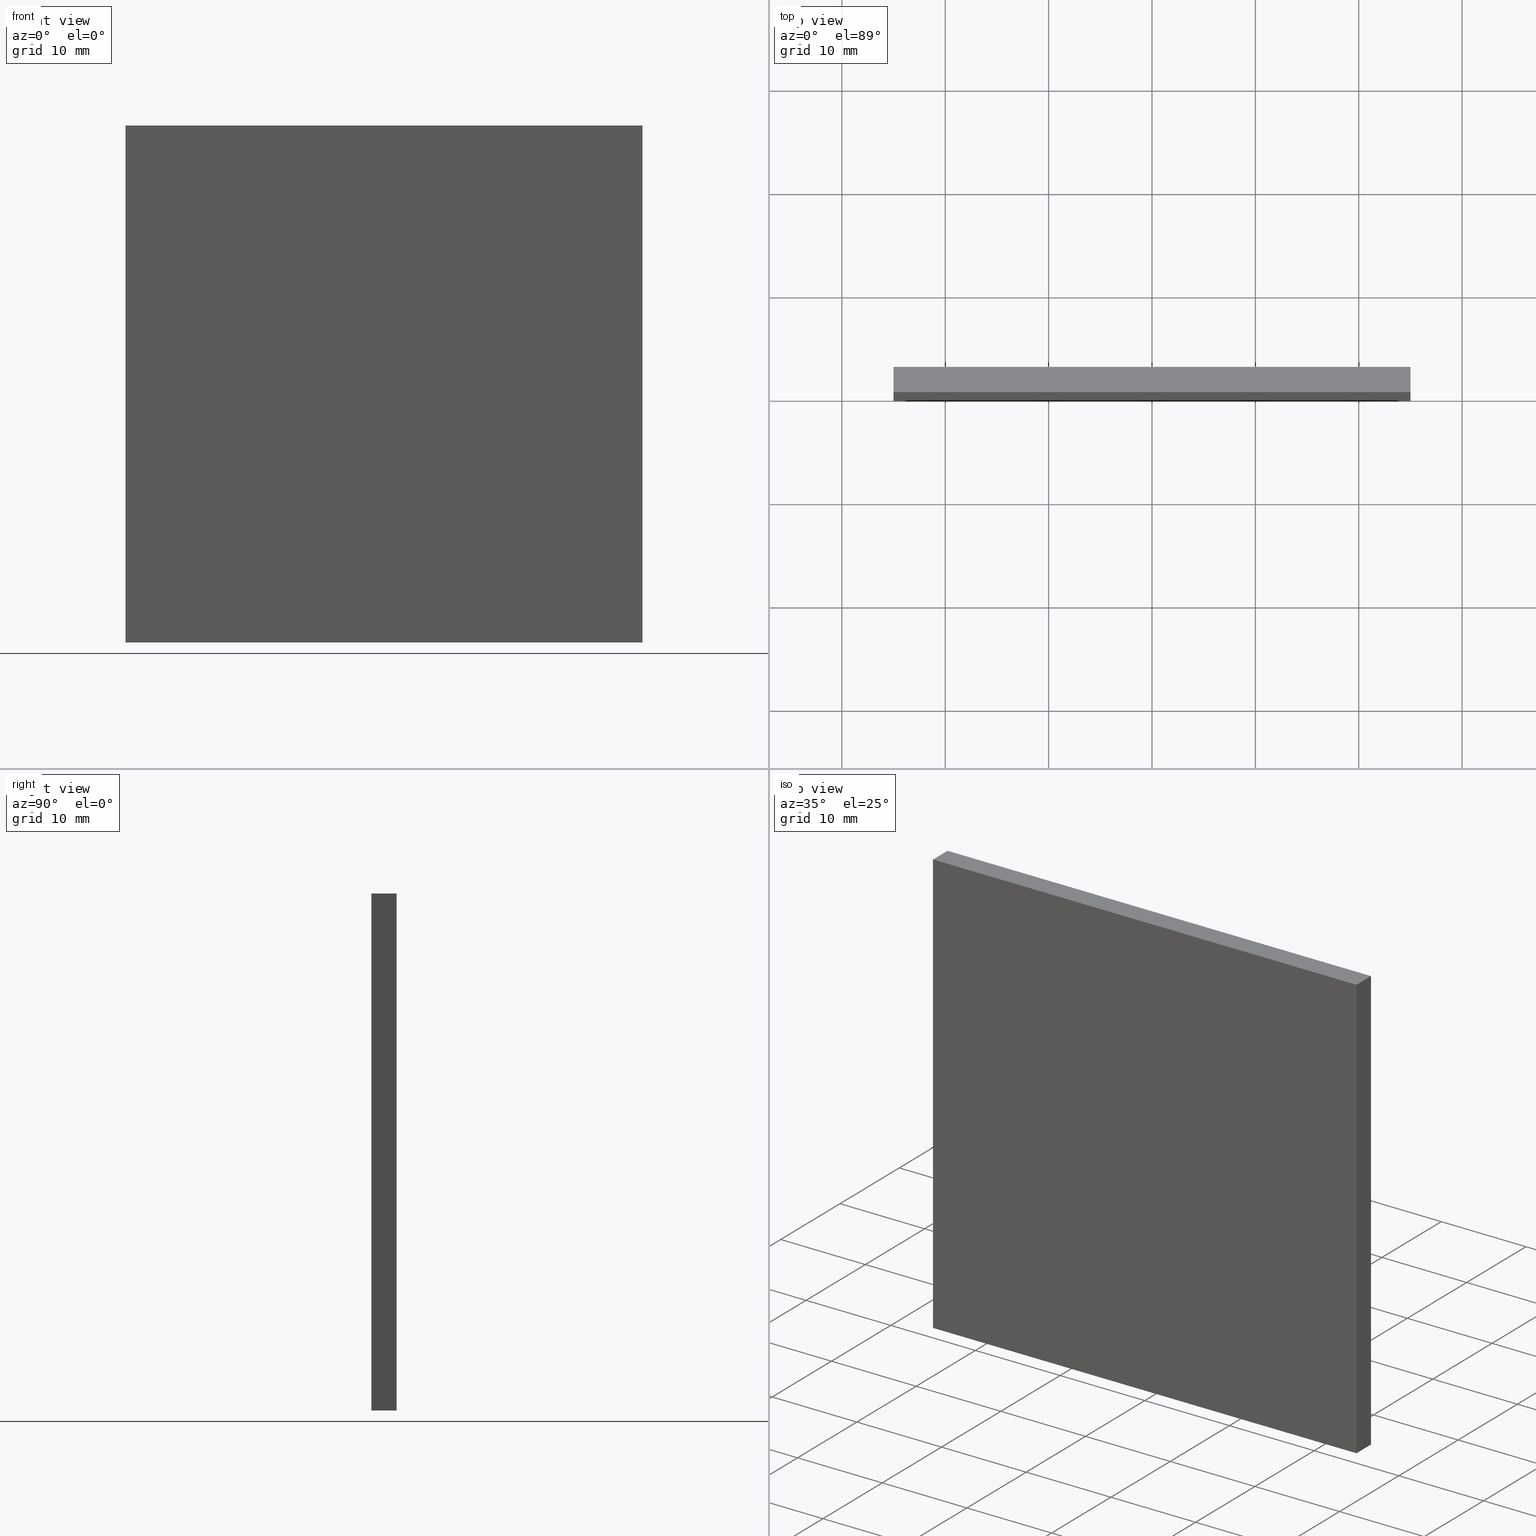
[diagram: canonical four-view strip — front | top / right | iso, engineering-drawing reading convention]
A machine part, canonical four-view strip (front | top / right | iso — engineering-drawing reading convention). The complete STEP part file that produces these views, byte-faithful:
ISO-10303-21;
HEADER;
FILE_DESCRIPTION (( 'STEP AP214' ),
    '1' );
FILE_NAME ('248611.STEP',
    '2019-08-06T06:12:05',
    ( 'user' ),
    ( '΢���й�' ),
    'SwSTEP 2.0',
    'SolidWorks 2016',
    '' );
FILE_SCHEMA (( 'AUTOMOTIVE_DESIGN' ));
ENDSEC;

DATA;
#1 = ORIENTED_EDGE ( 'NONE', *, *, #182, .F. ) ;
#2 = PRODUCT ( '248611', '248611', '', ( #51 ) ) ;
#3 = CARTESIAN_POINT ( 'NONE',  ( -25.00000000000000000, 0.0000000000000000000, -25.00000000000000000 ) ) ;
#4 = CARTESIAN_POINT ( 'NONE',  ( 0.0000000000000000000, 0.0000000000000000000, 0.0000000000000000000 ) ) ;
#5 = LINE ( 'NONE', #97, #141 ) ;
#6 = CARTESIAN_POINT ( 'NONE',  ( -25.00000000000000000, 2.439999999999999900, -25.00000000000000000 ) ) ;
#7 = VECTOR ( 'NONE', #28, 1000.000000000000000 ) ;
#8 = ADVANCED_FACE ( 'NONE', ( #172 ), #106, .F. ) ;
#9 = ORIENTED_EDGE ( 'NONE', *, *, #191, .T. ) ;
#10 = CARTESIAN_POINT ( 'NONE',  ( -25.00000000000000000, 2.439999999999999900, -25.00000000000000000 ) ) ;
#11 = DIRECTION ( 'NONE',  ( 0.0000000000000000000, 0.0000000000000000000, 1.000000000000000000 ) ) ;
#12 = PLANE ( 'NONE',  #49 ) ;
#13 = PRODUCT_DEFINITION_CONTEXT ( 'detailed design', #146, 'design' ) ;
#14 = CARTESIAN_POINT ( 'NONE',  ( 25.00000000000000000, 2.439999999999999900, -25.00000000000000000 ) ) ;
#15 = EDGE_CURVE ( 'NONE', #23, #95, #78, .T. ) ;
#16 = ORIENTED_EDGE ( 'NONE', *, *, #191, .F. ) ;
#17 = DIRECTION ( 'NONE',  ( -0.0000000000000000000, -1.000000000000000000, -0.0000000000000000000 ) ) ;
#18 = PLANE ( 'NONE',  #186 ) ;
#19 = FILL_AREA_STYLE ('',( #112 ) ) ;
#20 = PRODUCT_RELATED_PRODUCT_CATEGORY ( 'part', '', ( #2 ) ) ;
#21 = MECHANICAL_DESIGN_GEOMETRIC_PRESENTATION_REPRESENTATION (  '', ( #108 ), #194 ) ;
#22 = FACE_OUTER_BOUND ( 'NONE', #79, .T. ) ;
#23 = VERTEX_POINT ( 'NONE', #180 ) ;
#24 = DIRECTION ( 'NONE',  ( -0.0000000000000000000, -1.000000000000000000, -0.0000000000000000000 ) ) ;
#25 = DIRECTION ( 'NONE',  ( -0.0000000000000000000, -1.000000000000000000, -0.0000000000000000000 ) ) ;
#26 =( NAMED_UNIT ( * ) SI_UNIT ( $, .STERADIAN. ) SOLID_ANGLE_UNIT ( ) );
#27 = CARTESIAN_POINT ( 'NONE',  ( -25.00000000000000000, 0.0000000000000000000, -25.00000000000000000 ) ) ;
#28 = DIRECTION ( 'NONE',  ( 0.0000000000000000000, 0.0000000000000000000, -1.000000000000000000 ) ) ;
#29 = PRODUCT_DEFINITION ( 'δ֪', '', #174, #13 ) ;
#30 = DIRECTION ( 'NONE',  ( -1.000000000000000000, 0.0000000000000000000, 0.0000000000000000000 ) ) ;
#31 = CARTESIAN_POINT ( 'NONE',  ( -25.00000000000000000, 2.439999999999999900, 25.00000000000000000 ) ) ;
#32 = DIRECTION ( 'NONE',  ( 0.0000000000000000000, 0.0000000000000000000, 1.000000000000000000 ) ) ;
#33 = EDGE_CURVE ( 'NONE', #75, #47, #103, .T. ) ;
#34 = DIRECTION ( 'NONE',  ( 1.000000000000000000, 0.0000000000000000000, -0.0000000000000000000 ) ) ;
#35 = EDGE_CURVE ( 'NONE', #47, #62, #109, .T. ) ;
#36 = UNCERTAINTY_MEASURE_WITH_UNIT (LENGTH_MEASURE( 1.000000000000000100E-005 ), #104, 'distance_accuracy_value', 'NONE');
#37 = PRESENTATION_STYLE_ASSIGNMENT (( #72 ) ) ;
#38 = DIRECTION ( 'NONE',  ( 0.0000000000000000000, -0.0000000000000000000, -1.000000000000000000 ) ) ;
#39 = ADVANCED_FACE ( 'NONE', ( #132 ), #143, .F. ) ;
#40 = DIRECTION ( 'NONE',  ( 0.0000000000000000000, 0.0000000000000000000, -1.000000000000000000 ) ) ;
#41 = DIRECTION ( 'NONE',  ( 1.000000000000000000, 0.0000000000000000000, 0.0000000000000000000 ) ) ;
#42 = ORIENTED_EDGE ( 'NONE', *, *, #15, .T. ) ;
#43 = DIRECTION ( 'NONE',  ( 1.000000000000000000, 0.0000000000000000000, 0.0000000000000000000 ) ) ;
#44 = COLOUR_RGB ( '',1.000000000000000000, 1.000000000000000000, 1.000000000000000000 ) ;
#45 = VECTOR ( 'NONE', #40, 1000.000000000000000 ) ;
#46 = CARTESIAN_POINT ( 'NONE',  ( 25.00000000000000000, 0.0000000000000000000, 25.00000000000000000 ) ) ;
#47 = VERTEX_POINT ( 'NONE', #76 ) ;
#48 = ORIENTED_EDGE ( 'NONE', *, *, #35, .F. ) ;
#49 = AXIS2_PLACEMENT_3D ( 'NONE', #67, #159, #164 ) ;
#50 = SURFACE_STYLE_FILL_AREA ( #19 ) ;
#51 = PRODUCT_CONTEXT ( 'NONE', #90, 'mechanical' ) ;
#52 = ORIENTED_EDGE ( 'NONE', *, *, #166, .T. ) ;
#53 = CARTESIAN_POINT ( 'NONE',  ( -25.00000000000000000, 2.439999999999999900, 25.00000000000000000 ) ) ;
#54 = ADVANCED_BREP_SHAPE_REPRESENTATION ( '248611', ( #202, #105 ), #124 ) ;
#55 = FILL_AREA_STYLE ('',( #101 ) ) ;
#56 = VECTOR ( 'NONE', #61, 1000.000000000000000 ) ;
#57 = APPLICATION_PROTOCOL_DEFINITION ( 'draft international standard', 'automotive_design', 1998, #146 ) ;
#58 = EDGE_LOOP ( 'NONE', ( #152, #122, #200, #86 ) ) ;
#59 = VECTOR ( 'NONE', #161, 1000.000000000000000 ) ;
#60 =( NAMED_UNIT ( * ) PLANE_ANGLE_UNIT ( ) SI_UNIT ( $, .RADIAN. ) );
#61 = DIRECTION ( 'NONE',  ( 1.000000000000000000, 0.0000000000000000000, 0.0000000000000000000 ) ) ;
#62 = VERTEX_POINT ( 'NONE', #46 ) ;
#63 = EDGE_CURVE ( 'NONE', #47, #74, #167, .T. ) ;
#64 = AXIS2_PLACEMENT_3D ( 'NONE', #116, #160, #177 ) ;
#65 =( NAMED_UNIT ( * ) SI_UNIT ( $, .STERADIAN. ) SOLID_ANGLE_UNIT ( ) );
#66 = CARTESIAN_POINT ( 'NONE',  ( 25.00000000000000000, 0.0000000000000000000, 25.00000000000000000 ) ) ;
#67 = CARTESIAN_POINT ( 'NONE',  ( 0.0000000000000000000, 0.0000000000000000000, 0.0000000000000000000 ) ) ;
#68 = DIRECTION ( 'NONE',  ( -0.0000000000000000000, -0.0000000000000000000, 1.000000000000000000 ) ) ;
#69 = LINE ( 'NONE', #181, #121 ) ;
#70 = EDGE_LOOP ( 'NONE', ( #42, #1, #184, #129 ) ) ;
#71 = DIRECTION ( 'NONE',  ( 0.0000000000000000000, 0.0000000000000000000, -1.000000000000000000 ) ) ;
#72 = SURFACE_STYLE_USAGE ( .BOTH. , #162 ) ;
#73 = EDGE_CURVE ( 'NONE', #62, #23, #168, .T. ) ;
#74 = VERTEX_POINT ( 'NONE', #118 ) ;
#75 = VERTEX_POINT ( 'NONE', #144 ) ;
#76 = CARTESIAN_POINT ( 'NONE',  ( 25.00000000000000000, 2.439999999999999900, 25.00000000000000000 ) ) ;
#77 = FACE_OUTER_BOUND ( 'NONE', #175, .T. ) ;
#78 = LINE ( 'NONE', #3, #88 ) ;
#79 = EDGE_LOOP ( 'NONE', ( #171, #163, #110, #201 ) ) ;
#80 = STYLED_ITEM ( 'NONE', ( #37 ), #202 ) ;
#81 = EDGE_CURVE ( 'NONE', #74, #23, #127, .T. ) ;
#82 = CARTESIAN_POINT ( 'NONE',  ( -25.00000000000000000, 0.0000000000000000000, 25.00000000000000000 ) ) ;
#83 = EDGE_LOOP ( 'NONE', ( #192, #189, #93, #151 ) ) ;
#84 = DIRECTION ( 'NONE',  ( 1.000000000000000000, -0.0000000000000000000, 0.0000000000000000000 ) ) ;
#85 = COLOUR_RGB ( '',1.000000000000000000, 1.000000000000000000, 1.000000000000000000 ) ;
#86 = ORIENTED_EDGE ( 'NONE', *, *, #33, .T. ) ;
#87 = FACE_OUTER_BOUND ( 'NONE', #83, .T. ) ;
#88 = VECTOR ( 'NONE', #133, 1000.000000000000000 ) ;
#89 = CARTESIAN_POINT ( 'NONE',  ( 25.00000000000000000, 2.439999999999999900, 25.00000000000000000 ) ) ;
#90 = APPLICATION_CONTEXT ( 'automotive_design' ) ;
#91 = ADVANCED_FACE ( 'NONE', ( #149 ), #18, .F. ) ;
#92 = DIRECTION ( 'NONE',  ( 0.0000000000000000000, 0.0000000000000000000, 1.000000000000000000 ) ) ;
#93 = ORIENTED_EDGE ( 'NONE', *, *, #166, .F. ) ;
#94 = VERTEX_POINT ( 'NONE', #10 ) ;
#95 = VERTEX_POINT ( 'NONE', #27 ) ;
#96 = AXIS2_PLACEMENT_3D ( 'NONE', #6, #92, #34 ) ;
#97 = CARTESIAN_POINT ( 'NONE',  ( -25.00000000000000000, 0.0000000000000000000, 25.00000000000000000 ) ) ;
#98 =( LENGTH_UNIT ( ) NAMED_UNIT ( * ) SI_UNIT ( .MILLI., .METRE. ) );
#99 = ORIENTED_EDGE ( 'NONE', *, *, #33, .F. ) ;
#100 = CARTESIAN_POINT ( 'NONE',  ( -25.00000000000000000, 2.439999999999999900, -25.00000000000000000 ) ) ;
#101 = FILL_AREA_STYLE_COLOUR ( '', #44 ) ;
#102 = VECTOR ( 'NONE', #199, 1000.000000000000000 ) ;
#103 = LINE ( 'NONE', #187, #120 ) ;
#104 =( LENGTH_UNIT ( ) NAMED_UNIT ( * ) SI_UNIT ( .MILLI., .METRE. ) );
#105 = AXIS2_PLACEMENT_3D ( 'NONE', #4, #11, #43 ) ;
#106 = PLANE ( 'NONE',  #96 ) ;
#107 = AXIS2_PLACEMENT_3D ( 'NONE', #31, #84, #71 ) ;
#108 = STYLED_ITEM ( 'NONE', ( #165 ), #54 ) ;
#109 = LINE ( 'NONE', #89, #59 ) ;
#110 = ORIENTED_EDGE ( 'NONE', *, *, #63, .F. ) ;
#111 = EDGE_CURVE ( 'NONE', #74, #94, #69, .T. ) ;
#112 = FILL_AREA_STYLE_COLOUR ( '', #85 ) ;
#113 = ORIENTED_EDGE ( 'NONE', *, *, #153, .F. ) ;
#114 = LINE ( 'NONE', #130, #102 ) ;
#115 =( NAMED_UNIT ( * ) PLANE_ANGLE_UNIT ( ) SI_UNIT ( $, .RADIAN. ) );
#116 = CARTESIAN_POINT ( 'NONE',  ( -25.00000000000000000, 2.439999999999999900, 25.00000000000000000 ) ) ;
#117 = CLOSED_SHELL ( 'NONE', ( #154, #8, #39, #190, #91, #147 ) ) ;
#118 = CARTESIAN_POINT ( 'NONE',  ( 25.00000000000000000, 2.439999999999999900, -25.00000000000000000 ) ) ;
#119 = SURFACE_SIDE_STYLE ('',( #50 ) ) ;
#120 = VECTOR ( 'NONE', #41, 1000.000000000000000 ) ;
#121 = VECTOR ( 'NONE', #195, 1000.000000000000000 ) ;
#122 = ORIENTED_EDGE ( 'NONE', *, *, #111, .T. ) ;
#123 = ORIENTED_EDGE ( 'NONE', *, *, #182, .T. ) ;
#124 =( GEOMETRIC_REPRESENTATION_CONTEXT ( 3 ) GLOBAL_UNCERTAINTY_ASSIGNED_CONTEXT ( ( #138 ) ) GLOBAL_UNIT_ASSIGNED_CONTEXT ( ( #98, #60, #65 ) ) REPRESENTATION_CONTEXT ( 'NONE', 'WORKASPACE' ) );
#125 = VECTOR ( 'NONE', #24, 1000.000000000000000 ) ;
#126 = ORIENTED_EDGE ( 'NONE', *, *, #155, .T. ) ;
#127 = LINE ( 'NONE', #14, #140 ) ;
#128 = PLANE ( 'NONE',  #64 ) ;
#129 = ORIENTED_EDGE ( 'NONE', *, *, #81, .T. ) ;
#130 = CARTESIAN_POINT ( 'NONE',  ( -25.00000000000000000, 2.439999999999999900, 25.00000000000000000 ) ) ;
#131 = CARTESIAN_POINT ( 'NONE',  ( 0.0000000000000000000, 2.439999999999999900, 0.0000000000000000000 ) ) ;
#132 = FACE_OUTER_BOUND ( 'NONE', #158, .T. ) ;
#133 = DIRECTION ( 'NONE',  ( -1.000000000000000000, -0.0000000000000000000, -0.0000000000000000000 ) ) ;
#134 = DIRECTION ( 'NONE',  ( 0.0000000000000000000, -1.000000000000000000, 0.0000000000000000000 ) ) ;
#135 = MECHANICAL_DESIGN_GEOMETRIC_PRESENTATION_REPRESENTATION (  '', ( #80 ), #169 ) ;
#136 = VERTEX_POINT ( 'NONE', #196 ) ;
#137 = LINE ( 'NONE', #53, #185 ) ;
#138 = UNCERTAINTY_MEASURE_WITH_UNIT (LENGTH_MEASURE( 1.000000000000000100E-005 ), #98, 'distance_accuracy_value', 'NONE');
#139 = PRESENTATION_LAYER_ASSIGNMENT (  '', '', ( #108 ) ) ;
#140 = VECTOR ( 'NONE', #17, 1000.000000000000000 ) ;
#141 = VECTOR ( 'NONE', #68, 1000.000000000000000 ) ;
#142 = APPLICATION_PROTOCOL_DEFINITION ( 'draft international standard', 'automotive_design', 1998, #90 ) ;
#143 = PLANE ( 'NONE',  #107 ) ;
#144 = CARTESIAN_POINT ( 'NONE',  ( -25.00000000000000000, 2.439999999999999900, 25.00000000000000000 ) ) ;
#145 = LINE ( 'NONE', #82, #56 ) ;
#146 = APPLICATION_CONTEXT ( 'automotive_design' ) ;
#147 = ADVANCED_FACE ( 'NONE', ( #87 ), #12, .T. ) ;
#148 = SURFACE_STYLE_USAGE ( .BOTH. , #119 ) ;
#149 = FACE_OUTER_BOUND ( 'NONE', #58, .T. ) ;
#150 = CARTESIAN_POINT ( 'NONE',  ( 25.00000000000000000, 2.439999999999999900, 25.00000000000000000 ) ) ;
#151 = ORIENTED_EDGE ( 'NONE', *, *, #15, .F. ) ;
#152 = ORIENTED_EDGE ( 'NONE', *, *, #63, .T. ) ;
#153 = EDGE_CURVE ( 'NONE', #94, #75, #114, .T. ) ;
#154 = ADVANCED_FACE ( 'NONE', ( #22 ), #193, .F. ) ;
#155 = EDGE_CURVE ( 'NONE', #136, #62, #145, .T. ) ;
#156 = SURFACE_STYLE_FILL_AREA ( #55 ) ;
#157 =( NAMED_UNIT ( * ) SI_UNIT ( $, .STERADIAN. ) SOLID_ANGLE_UNIT ( ) );
#158 = EDGE_LOOP ( 'NONE', ( #52, #16, #113, #123 ) ) ;
#159 = DIRECTION ( 'NONE',  ( 0.0000000000000000000, -1.000000000000000000, 0.0000000000000000000 ) ) ;
#160 = DIRECTION ( 'NONE',  ( 0.0000000000000000000, 0.0000000000000000000, -1.000000000000000000 ) ) ;
#161 = DIRECTION ( 'NONE',  ( -0.0000000000000000000, -1.000000000000000000, -0.0000000000000000000 ) ) ;
#162 = SURFACE_SIDE_STYLE ('',( #156 ) ) ;
#163 = ORIENTED_EDGE ( 'NONE', *, *, #81, .F. ) ;
#164 = DIRECTION ( 'NONE',  ( 0.0000000000000000000, -0.0000000000000000000, -1.000000000000000000 ) ) ;
#165 = PRESENTATION_STYLE_ASSIGNMENT (( #148 ) ) ;
#166 = EDGE_CURVE ( 'NONE', #95, #136, #5, .T. ) ;
#167 = LINE ( 'NONE', #150, #45 ) ;
#168 = LINE ( 'NONE', #66, #7 ) ;
#169 =( GEOMETRIC_REPRESENTATION_CONTEXT ( 3 ) GLOBAL_UNCERTAINTY_ASSIGNED_CONTEXT ( ( #176 ) ) GLOBAL_UNIT_ASSIGNED_CONTEXT ( ( #198, #188, #157 ) ) REPRESENTATION_CONTEXT ( 'NONE', 'WORKASPACE' ) );
#170 = PRESENTATION_LAYER_ASSIGNMENT (  '', '', ( #80 ) ) ;
#171 = ORIENTED_EDGE ( 'NONE', *, *, #73, .T. ) ;
#172 = FACE_OUTER_BOUND ( 'NONE', #70, .T. ) ;
#173 = AXIS2_PLACEMENT_3D ( 'NONE', #179, #30, #32 ) ;
#174 = PRODUCT_DEFINITION_FORMATION_WITH_SPECIFIED_SOURCE ( '�κ�', '', #2, .NOT_KNOWN. ) ;
#175 = EDGE_LOOP ( 'NONE', ( #126, #48, #99, #9 ) ) ;
#176 = UNCERTAINTY_MEASURE_WITH_UNIT (LENGTH_MEASURE( 1.000000000000000100E-005 ), #198, 'distance_accuracy_value', 'NONE');
#177 = DIRECTION ( 'NONE',  ( -1.000000000000000000, 0.0000000000000000000, -0.0000000000000000000 ) ) ;
#178 = SHAPE_DEFINITION_REPRESENTATION ( #197, #54 ) ;
#179 = CARTESIAN_POINT ( 'NONE',  ( 25.00000000000000000, 2.439999999999999900, 25.00000000000000000 ) ) ;
#180 = CARTESIAN_POINT ( 'NONE',  ( 25.00000000000000000, 0.0000000000000000000, -25.00000000000000000 ) ) ;
#181 = CARTESIAN_POINT ( 'NONE',  ( -25.00000000000000000, 2.439999999999999900, -25.00000000000000000 ) ) ;
#182 = EDGE_CURVE ( 'NONE', #94, #95, #183, .T. ) ;
#183 = LINE ( 'NONE', #100, #125 ) ;
#184 = ORIENTED_EDGE ( 'NONE', *, *, #111, .F. ) ;
#185 = VECTOR ( 'NONE', #25, 1000.000000000000000 ) ;
#186 = AXIS2_PLACEMENT_3D ( 'NONE', #131, #134, #38 ) ;
#187 = CARTESIAN_POINT ( 'NONE',  ( -25.00000000000000000, 2.439999999999999900, 25.00000000000000000 ) ) ;
#188 =( NAMED_UNIT ( * ) PLANE_ANGLE_UNIT ( ) SI_UNIT ( $, .RADIAN. ) );
#189 = ORIENTED_EDGE ( 'NONE', *, *, #155, .F. ) ;
#190 = ADVANCED_FACE ( 'NONE', ( #77 ), #128, .F. ) ;
#191 = EDGE_CURVE ( 'NONE', #75, #136, #137, .T. ) ;
#192 = ORIENTED_EDGE ( 'NONE', *, *, #73, .F. ) ;
#193 = PLANE ( 'NONE',  #173 ) ;
#194 =( GEOMETRIC_REPRESENTATION_CONTEXT ( 3 ) GLOBAL_UNCERTAINTY_ASSIGNED_CONTEXT ( ( #36 ) ) GLOBAL_UNIT_ASSIGNED_CONTEXT ( ( #104, #115, #26 ) ) REPRESENTATION_CONTEXT ( 'NONE', 'WORKASPACE' ) );
#195 = DIRECTION ( 'NONE',  ( -1.000000000000000000, -0.0000000000000000000, -0.0000000000000000000 ) ) ;
#196 = CARTESIAN_POINT ( 'NONE',  ( -25.00000000000000000, 0.0000000000000000000, 25.00000000000000000 ) ) ;
#197 = PRODUCT_DEFINITION_SHAPE ( 'NONE', 'NONE',  #29 ) ;
#198 =( LENGTH_UNIT ( ) NAMED_UNIT ( * ) SI_UNIT ( .MILLI., .METRE. ) );
#199 = DIRECTION ( 'NONE',  ( -0.0000000000000000000, -0.0000000000000000000, 1.000000000000000000 ) ) ;
#200 = ORIENTED_EDGE ( 'NONE', *, *, #153, .T. ) ;
#201 = ORIENTED_EDGE ( 'NONE', *, *, #35, .T. ) ;
#202 = MANIFOLD_SOLID_BREP ( '͹̨-����1', #117 ) ;
ENDSEC;
END-ISO-10303-21;
